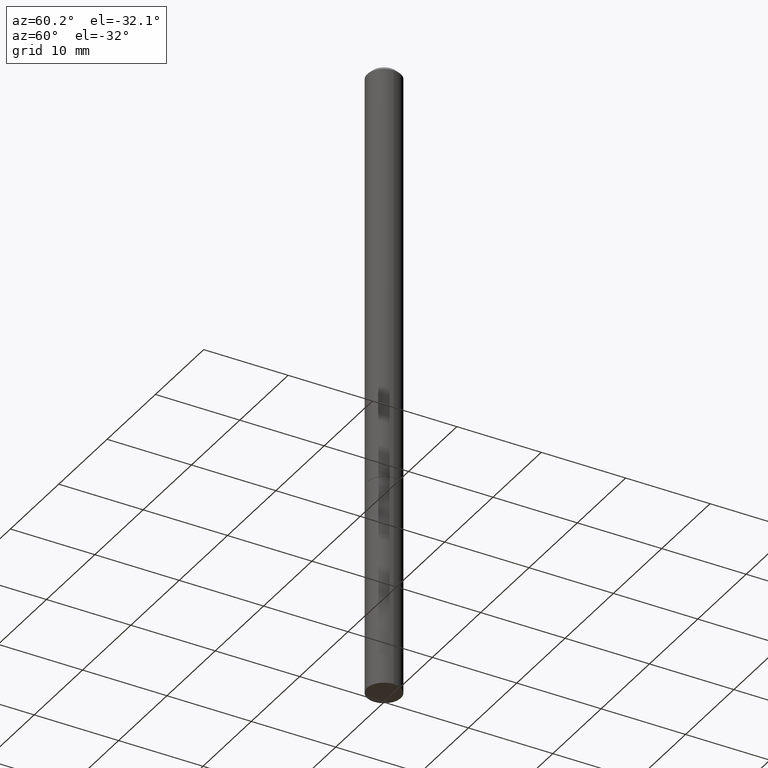
[diagram: clean part render]
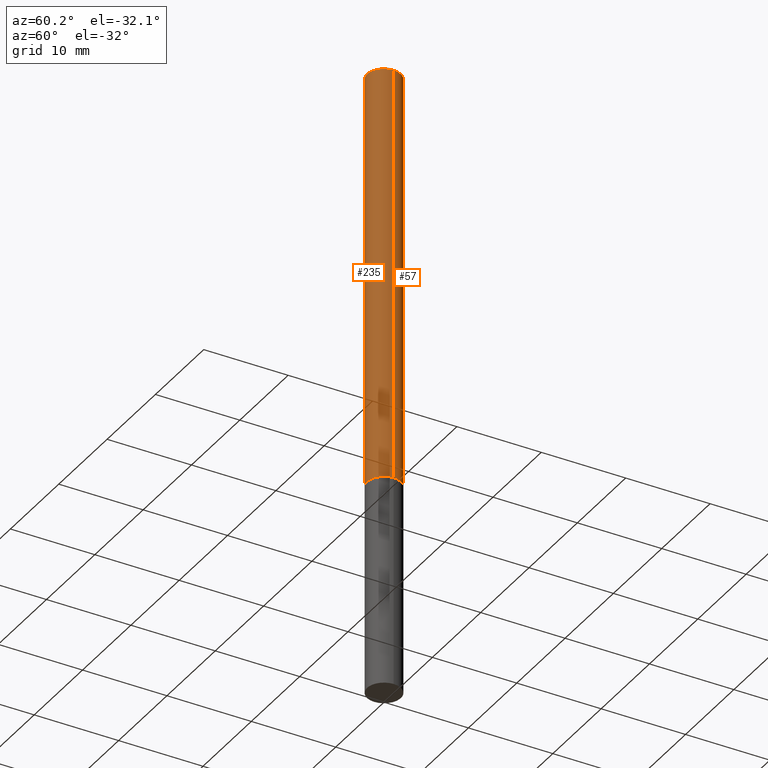
[diagram: same view with one multi-face feature highlighted, each face labeled with its STEP entity id]
A machine part, auxiliary view. The highlighted faces form ONE feature: a constant-radius fillet chain: 2 tangent blend faces with common blend radius 2.0002 mm. The faces share edges in the B-rep.
Their STEP definitions:
[1] entity #57 (Cylinder):
#11 = EDGE_LOOP ( 'NONE', ( #246, #304, #268, #325 ) ) ;
#12 = EDGE_CURVE ( 'NONE', #188, #159, #361, .T. ) ;
#27 = CARTESIAN_POINT ( 'NONE',  ( 0.07874999999999987566, -5.499083108677926554E-16, 3.839989210939293411E-30 ) ) ;
#29 = CIRCLE ( 'NONE', #192, 0.07875000000000000056 ) ;
#30 = VECTOR ( 'NONE', #313, 39.37007874015748143 ) ;
#54 = CARTESIAN_POINT ( 'NONE',  ( -0.07874999999999987566, 5.595524044110780128E-16, -3.873661383575732186E-30 ) ) ;
#57 = ADVANCED_FACE ( 'NONE', ( #174 ), #278, .T. ) ;
#77 = DIRECTION ( 'NONE',  ( 1.000000000000000000, -6.982962677686261977E-15, 0.000000000000000000 ) ) ;
#89 = AXIS2_PLACEMENT_3D ( 'NONE', #200, #338, #136 ) ;
#110 = DIRECTION ( 'NONE',  ( -2.445468806185136877E-29, 3.491481338843145188E-15, 1.000000000000000000 ) ) ;
#119 = CIRCLE ( 'NONE', #363, 0.07874999999999973688 ) ;
#120 = CARTESIAN_POINT ( 'NONE',  ( -0.07875000000000000056, -2.910107176064290492E-15, -1.967499999999999805 ) ) ;
#127 = VERTEX_POINT ( 'NONE', #308 ) ;
#128 = EDGE_CURVE ( 'NONE', #162, #188, #29, .T. ) ;
#136 = DIRECTION ( 'NONE',  ( 1.000000000000000000, -6.982962677686266711E-15, 4.876176775795935793E-29 ) ) ;
#139 = VECTOR ( 'NONE', #110, 39.37007874015748143 ) ;
#152 = EDGE_CURVE ( 'NONE', #162, #127, #197, .T. ) ;
#159 = VERTEX_POINT ( 'NONE', #208 ) ;
#162 = VERTEX_POINT ( 'NONE', #312 ) ;
#174 = FACE_OUTER_BOUND ( 'NONE', #11, .T. ) ;
#180 = DIRECTION ( 'NONE',  ( -2.445468806185136597E-29, 3.491481338843145583E-15, 1.000000000000000000 ) ) ;
#188 = VERTEX_POINT ( 'NONE', #120 ) ;
#192 = AXIS2_PLACEMENT_3D ( 'NONE', #282, #340, #77 ) ;
#197 = LINE ( 'NONE', #27, #30 ) ;
#200 = CARTESIAN_POINT ( 'NONE',  ( 0.000000000000000000, 0.000000000000000000, 0.000000000000000000 ) ) ;
#208 = CARTESIAN_POINT ( 'NONE',  ( -0.07874999999999973688, 4.800786840909286670E-16, -0.02000000000000001776 ) ) ;
#238 = CARTESIAN_POINT ( 'NONE',  ( 4.890937612370276662E-31, -6.982962677686296539E-17, -0.02000000000000001776 ) ) ;
#246 = ORIENTED_EDGE ( 'NONE', *, *, #128, .T. ) ;
#268 = ORIENTED_EDGE ( 'NONE', *, *, #299, .F. ) ;
#278 = CYLINDRICAL_SURFACE ( 'NONE', #89, 0.07874999999999987566 ) ;
#282 = CARTESIAN_POINT ( 'NONE',  ( 4.811459876169255671E-29, -6.869489534173887122E-15, -1.967499999999999805 ) ) ;
#299 = EDGE_CURVE ( 'NONE', #127, #159, #119, .T. ) ;
#304 = ORIENTED_EDGE ( 'NONE', *, *, #12, .T. ) ;
#308 = CARTESIAN_POINT ( 'NONE',  ( 0.07874999999999973688, -6.100938441013694129E-16, -0.02000000000000001776 ) ) ;
#312 = CARTESIAN_POINT ( 'NONE',  ( 0.07875000000000000056, -7.419397845041680468E-15, -1.967499999999999805 ) ) ;
#313 = DIRECTION ( 'NONE',  ( -2.445468806185136877E-29, 3.491481338843145188E-15, 1.000000000000000000 ) ) ;
#325 = ORIENTED_EDGE ( 'NONE', *, *, #152, .F. ) ;
#338 = DIRECTION ( 'NONE',  ( -2.445468806185136597E-29, 3.491481338843145583E-15, 1.000000000000000000 ) ) ;
#340 = DIRECTION ( 'NONE',  ( -2.445468806185136597E-29, 3.491481338843145583E-15, 1.000000000000000000 ) ) ;
#348 = DIRECTION ( 'NONE',  ( 1.000000000000000000, -6.982962677686266711E-15, 0.000000000000000000 ) ) ;
#361 = LINE ( 'NONE', #54, #139 ) ;
#363 = AXIS2_PLACEMENT_3D ( 'NONE', #238, #180, #348 ) ;
[2] entity #235 (Cylinder):
#6 = CARTESIAN_POINT ( 'NONE',  ( 4.811459876169255671E-29, -6.869489534173887122E-15, -1.967499999999999805 ) ) ;
#7 = CIRCLE ( 'NONE', #40, 0.07875000000000000056 ) ;
#9 = FACE_OUTER_BOUND ( 'NONE', #67, .T. ) ;
#12 = EDGE_CURVE ( 'NONE', #188, #159, #361, .T. ) ;
#27 = CARTESIAN_POINT ( 'NONE',  ( 0.07874999999999987566, -5.499083108677926554E-16, 3.839989210939293411E-30 ) ) ;
#30 = VECTOR ( 'NONE', #313, 39.37007874015748143 ) ;
#40 = AXIS2_PLACEMENT_3D ( 'NONE', #6, #145, #62 ) ;
#54 = CARTESIAN_POINT ( 'NONE',  ( -0.07874999999999987566, 5.595524044110780128E-16, -3.873661383575732186E-30 ) ) ;
#62 = DIRECTION ( 'NONE',  ( 1.000000000000000000, -6.982962677686261977E-15, 0.000000000000000000 ) ) ;
#64 = DIRECTION ( 'NONE',  ( -2.445468806185136597E-29, 3.491481338843145583E-15, 1.000000000000000000 ) ) ;
#67 = EDGE_LOOP ( 'NONE', ( #69, #96, #248, #195 ) ) ;
#69 = ORIENTED_EDGE ( 'NONE', *, *, #12, .F. ) ;
#72 = AXIS2_PLACEMENT_3D ( 'NONE', #288, #149, #285 ) ;
#96 = ORIENTED_EDGE ( 'NONE', *, *, #292, .T. ) ;
#110 = DIRECTION ( 'NONE',  ( -2.445468806185136877E-29, 3.491481338843145188E-15, 1.000000000000000000 ) ) ;
#120 = CARTESIAN_POINT ( 'NONE',  ( -0.07875000000000000056, -2.910107176064290492E-15, -1.967499999999999805 ) ) ;
#127 = VERTEX_POINT ( 'NONE', #308 ) ;
#139 = VECTOR ( 'NONE', #110, 39.37007874015748143 ) ;
#145 = DIRECTION ( 'NONE',  ( -2.445468806185136597E-29, 3.491481338843145583E-15, 1.000000000000000000 ) ) ;
#149 = DIRECTION ( 'NONE',  ( -2.445468806185136597E-29, 3.491481338843145583E-15, 1.000000000000000000 ) ) ;
#152 = EDGE_CURVE ( 'NONE', #162, #127, #197, .T. ) ;
#159 = VERTEX_POINT ( 'NONE', #208 ) ;
#162 = VERTEX_POINT ( 'NONE', #312 ) ;
#177 = CYLINDRICAL_SURFACE ( 'NONE', #72, 0.07874999999999987566 ) ;
#188 = VERTEX_POINT ( 'NONE', #120 ) ;
#195 = ORIENTED_EDGE ( 'NONE', *, *, #360, .F. ) ;
#197 = LINE ( 'NONE', #27, #30 ) ;
#208 = CARTESIAN_POINT ( 'NONE',  ( -0.07874999999999973688, 4.800786840909286670E-16, -0.02000000000000001776 ) ) ;
#225 = CIRCLE ( 'NONE', #272, 0.07874999999999973688 ) ;
#235 = ADVANCED_FACE ( 'NONE', ( #9 ), #177, .T. ) ;
#248 = ORIENTED_EDGE ( 'NONE', *, *, #152, .T. ) ;
#267 = CARTESIAN_POINT ( 'NONE',  ( 4.890937612370276662E-31, -6.982962677686296539E-17, -0.02000000000000001776 ) ) ;
#272 = AXIS2_PLACEMENT_3D ( 'NONE', #267, #64, #354 ) ;
#285 = DIRECTION ( 'NONE',  ( 1.000000000000000000, -6.982962677686266711E-15, 4.876176775795935793E-29 ) ) ;
#288 = CARTESIAN_POINT ( 'NONE',  ( 0.000000000000000000, 0.000000000000000000, 0.000000000000000000 ) ) ;
#292 = EDGE_CURVE ( 'NONE', #188, #162, #7, .T. ) ;
#308 = CARTESIAN_POINT ( 'NONE',  ( 0.07874999999999973688, -6.100938441013694129E-16, -0.02000000000000001776 ) ) ;
#312 = CARTESIAN_POINT ( 'NONE',  ( 0.07875000000000000056, -7.419397845041680468E-15, -1.967499999999999805 ) ) ;
#313 = DIRECTION ( 'NONE',  ( -2.445468806185136877E-29, 3.491481338843145188E-15, 1.000000000000000000 ) ) ;
#354 = DIRECTION ( 'NONE',  ( 1.000000000000000000, -6.982962677686266711E-15, 0.000000000000000000 ) ) ;
#360 = EDGE_CURVE ( 'NONE', #159, #127, #225, .T. ) ;
#361 = LINE ( 'NONE', #54, #139 ) ;